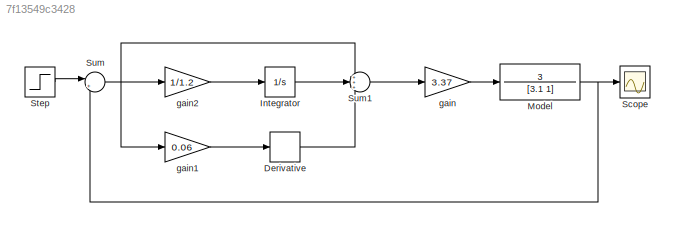
MODEL slx_7f13549c3428
KIND model
CONFIG AbsTol = auto
CONFIG EnableMultiTasking = off
CONFIG FixedStep = auto
CONFIG MaxStep = auto
CONFIG MinStep = auto
CONFIG RelTol = 1e-3
CONFIG SampleTimeConstraint = Unconstrained
CONFIG SolverName = VariableStepAuto
CONFIG StartTime = 0.0
CONFIG StopTime = 10.0
BLOCK [Derivative] Derivative
BLOCK [Integrator] Integrator
BLOCK [TransferFcn] Model
  Denominator = [3.1 1]
  Numerator = 3
BLOCK [Scope] Scope
  Floating = off
  NumInputPorts = 1
  ScopeSpecificationString = Simulink.scopes.TimeScopeBlockCfg('CurrentConfiguration', extmgr.ConfigurationSet(extmgr.Configuration('Core','General UI',true),extmgr.Configuration('Core','Source UI',true),extmgr.Configuration('Sources','WiredSimulink',true),extmgr.Configuration('Visuals','Time Domain',true,'SerializedDisplays',{struct('MinYLimReal','-4.09042','MaxYLimReal','36.81382','YLabelReal','','MinYLimMag','0.00000','Max...<+1447ch>
BLOCK [Step] Step
  After = 30
  SampleTime = 0
  Time = 0
BLOCK [Sum] Sum
  Inputs = |+-
BLOCK [Sum] Sum1
  Inputs = +++
BLOCK [Gain] gain
  Gain = 3.37
BLOCK [Gain] gain1
  Gain = 0.06
BLOCK [Gain] gain2
  Gain = 1/1.2
LINE Derivative:1 -> Sum1:3
LINE Integrator:1 -> Sum1:2
NET Model:1 -> Scope:1, Sum:2
LINE Step:1 -> Sum:1
LINE Sum1:1 -> gain:1
NET Sum:1 -> Sum1:1, gain1:1, gain2:1
LINE gain1:1 -> Derivative:1
LINE gain2:1 -> Integrator:1
LINE gain:1 -> Model:1
note: NET lines group one-source signal fan-out (src -> all destinations, sorted); 1:1 wires keep LINE
